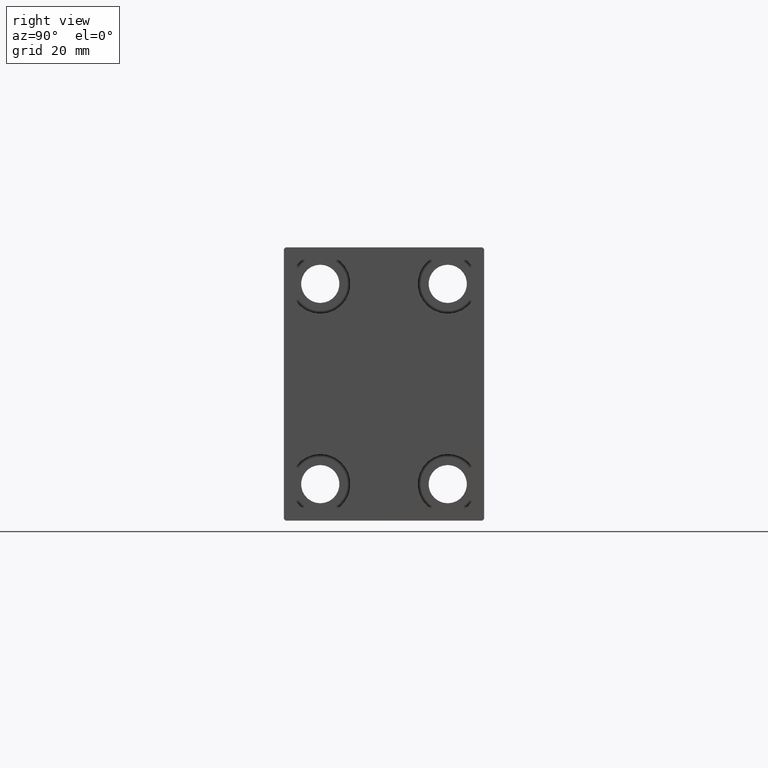
[diagram: clean part render]
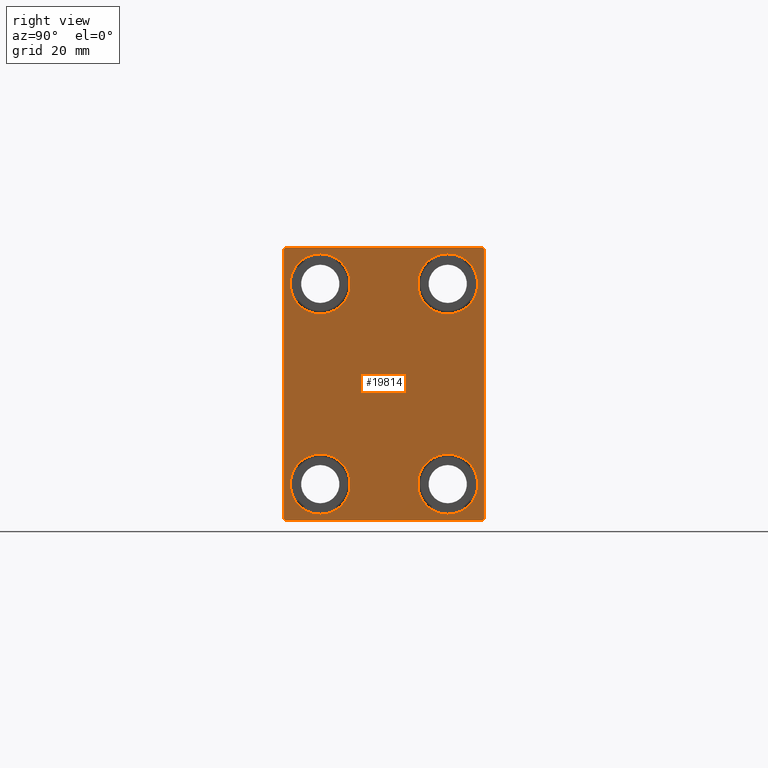
[diagram: same view with one face highlighted and labeled with its STEP entity id]
A machine part, right view. The second image highlights one B-rep face of the part: STEP entity #19814.
In plain terms, the highlighted planar face has unit normal (1, 0, 0).
Its self-contained STEP definition (entity closure, byte-faithful):
#22 = ORIENTED_EDGE ( 'NONE', *, *, #248, .T. ) ;
#248 = EDGE_CURVE ( 'NONE', #11157, #6592, #11171, .T. ) ;
#280 = FACE_BOUND ( 'NONE', #11203, .T. ) ;
#523 = FACE_BOUND ( 'NONE', #22018, .T. ) ;
#537 = EDGE_CURVE ( 'NONE', #32947, #46405, #14655, .T. ) ;
#695 = VECTOR ( 'NONE', #15136, 1000.000000000000000 ) ;
#758 = CARTESIAN_POINT ( 'NONE',  ( 105.0000000000000000, 17.49999999999999645, -27.50000000000000355 ) ) ;
#877 = CIRCLE ( 'NONE', #10692, 8.250000000000000000 ) ;
#1201 = CARTESIAN_POINT ( 'NONE',  ( 105.0000000000000000, -17.50000000000000355, -27.50000000000000355 ) ) ;
#1653 = ORIENTED_EDGE ( 'NONE', *, *, #10357, .T. ) ;
#2621 = AXIS2_PLACEMENT_3D ( 'NONE', #20631, #24173, #20401 ) ;
#2986 = EDGE_CURVE ( 'NONE', #46405, #32947, #13110, .T. ) ;
#3544 = VERTEX_POINT ( 'NONE', #36814 ) ;
#4129 = CARTESIAN_POINT ( 'NONE',  ( 105.0000000000000000, -27.50000000000000355, 37.50000000000000000 ) ) ;
#4955 = AXIS2_PLACEMENT_3D ( 'NONE', #1201, #11401, #25819 ) ;
#5139 = DIRECTION ( 'NONE',  ( 0.000000000000000000, 1.000000000000000000, 0.000000000000000000 ) ) ;
#5162 = ORIENTED_EDGE ( 'NONE', *, *, #42896, .T. ) ;
#5534 = AXIS2_PLACEMENT_3D ( 'NONE', #26331, #44065, #41002 ) ;
#5926 = EDGE_LOOP ( 'NONE', ( #14319, #15147 ) ) ;
#6106 = CARTESIAN_POINT ( 'NONE',  ( 105.0000000000000000, 27.50000000000000355, -37.50000000000000000 ) ) ;
#6252 = EDGE_CURVE ( 'NONE', #14514, #41051, #36610, .T. ) ;
#6592 = VERTEX_POINT ( 'NONE', #25732 ) ;
#7147 = CIRCLE ( 'NONE', #39632, 8.250000000000000000 ) ;
#7225 = CARTESIAN_POINT ( 'NONE',  ( 105.0000000000000000, 17.50000000000000355, 19.25000000000000000 ) ) ;
#7358 = VERTEX_POINT ( 'NONE', #34756 ) ;
#7791 = CARTESIAN_POINT ( 'NONE',  ( 105.0000000000000000, 27.49999999999999645, 37.00000000000001421 ) ) ;
#8145 = DIRECTION ( 'NONE',  ( -1.000000000000000000, -0.000000000000000000, -0.000000000000000000 ) ) ;
#8325 = FACE_BOUND ( 'NONE', #42823, .T. ) ;
#8373 = DIRECTION ( 'NONE',  ( 0.000000000000000000, 0.000000000000000000, 1.000000000000000000 ) ) ;
#8450 = EDGE_CURVE ( 'NONE', #41051, #14514, #44954, .T. ) ;
#8724 = CARTESIAN_POINT ( 'NONE',  ( 105.0000000000000000, -32.25000000000038369, -32.24999999999949551 ) ) ;
#9663 = LINE ( 'NONE', #12762, #19270 ) ;
#9815 = EDGE_CURVE ( 'NONE', #6592, #45237, #36546, .T. ) ;
#9898 = ORIENTED_EDGE ( 'NONE', *, *, #22480, .T. ) ;
#10357 = EDGE_CURVE ( 'NONE', #30038, #42576, #18017, .T. ) ;
#10692 = AXIS2_PLACEMENT_3D ( 'NONE', #46297, #10797, #17220 ) ;
#10797 = DIRECTION ( 'NONE',  ( -1.000000000000000000, -0.000000000000000000, -0.000000000000000000 ) ) ;
#10855 = AXIS2_PLACEMENT_3D ( 'NONE', #21978, #25756, #40194 ) ;
#10947 = CARTESIAN_POINT ( 'NONE',  ( 105.0000000000000000, 0.000000000000000000, 0.000000000000000000 ) ) ;
#11157 = VERTEX_POINT ( 'NONE', #37677 ) ;
#11171 = LINE ( 'NONE', #18957, #23672 ) ;
#11203 = EDGE_LOOP ( 'NONE', ( #32267, #34064 ) ) ;
#11401 = DIRECTION ( 'NONE',  ( -1.000000000000000000, -0.000000000000000000, -0.000000000000000000 ) ) ;
#11658 = VECTOR ( 'NONE', #5139, 1000.000000000000000 ) ;
#11765 = VECTOR ( 'NONE', #40424, 1000.000000000000000 ) ;
#12762 = CARTESIAN_POINT ( 'NONE',  ( 105.0000000000000000, 32.24999999999999289, -32.24999999999999289 ) ) ;
#13083 = CARTESIAN_POINT ( 'NONE',  ( 105.0000000000000000, 17.49999999999999645, -19.25000000000000355 ) ) ;
#13110 = CIRCLE ( 'NONE', #5534, 8.249999999999992895 ) ;
#13441 = DIRECTION ( 'NONE',  ( -1.000000000000000000, -0.000000000000000000, -0.000000000000000000 ) ) ;
#13769 = DIRECTION ( 'NONE',  ( -0.000000000000000000, -0.7071067811865524577, 0.7071067811865426878 ) ) ;
#14122 = DIRECTION ( 'NONE',  ( 0.000000000000000000, 0.000000000000000000, -1.000000000000000000 ) ) ;
#14319 = ORIENTED_EDGE ( 'NONE', *, *, #537, .T. ) ;
#14367 = ORIENTED_EDGE ( 'NONE', *, *, #6252, .T. ) ;
#14514 = VERTEX_POINT ( 'NONE', #23542 ) ;
#14655 = CIRCLE ( 'NONE', #10855, 8.249999999999992895 ) ;
#14700 = CARTESIAN_POINT ( 'NONE',  ( 105.0000000000000000, 32.24999999999981526, 32.25000000000025580 ) ) ;
#14742 = PLANE ( 'NONE',  #19137 ) ;
#14851 = VECTOR ( 'NONE', #13769, 1000.000000000000000 ) ;
#15010 = VERTEX_POINT ( 'NONE', #24430 ) ;
#15136 = DIRECTION ( 'NONE',  ( -0.000000000000000000, 0.7071067811865378028, -0.7071067811865573427 ) ) ;
#15147 = ORIENTED_EDGE ( 'NONE', *, *, #2986, .T. ) ;
#15218 = DIRECTION ( 'NONE',  ( -1.000000000000000000, -0.000000000000000000, -0.000000000000000000 ) ) ;
#16820 = CARTESIAN_POINT ( 'NONE',  ( 105.0000000000000000, -27.50000000000000355, -37.00000000000000000 ) ) ;
#17220 = DIRECTION ( 'NONE',  ( 0.000000000000000000, 0.000000000000000000, 1.000000000000000000 ) ) ;
#18017 = LINE ( 'NONE', #14700, #14851 ) ;
#18579 = CIRCLE ( 'NONE', #4955, 8.250000000000000000 ) ;
#18957 = CARTESIAN_POINT ( 'NONE',  ( 105.0000000000000000, -32.25000000000000000, 32.25000000000000000 ) ) ;
#18976 = DIRECTION ( 'NONE',  ( 1.000000000000000000, 0.000000000000000000, 0.000000000000000000 ) ) ;
#19137 = AXIS2_PLACEMENT_3D ( 'NONE', #10947, #18976, #22284 ) ;
#19270 = VECTOR ( 'NONE', #30950, 1000.000000000000114 ) ;
#19814 = ADVANCED_FACE ( 'NONE', ( #280, #523, #25827, #8325, #28913 ), #14742, .T. ) ;
#20401 = DIRECTION ( 'NONE',  ( 0.000000000000000000, 0.000000000000000000, 1.000000000000000000 ) ) ;
#20403 = ORIENTED_EDGE ( 'NONE', *, *, #40544, .T. ) ;
#20631 = CARTESIAN_POINT ( 'NONE',  ( 105.0000000000000000, -17.49999999999999645, 27.49999999999999645 ) ) ;
#21474 = DIRECTION ( 'NONE',  ( 0.000000000000000000, -9.251858538542970348E-17, 1.000000000000000000 ) ) ;
#21978 = CARTESIAN_POINT ( 'NONE',  ( 105.0000000000000000, 17.50000000000000355, 27.49999999999999645 ) ) ;
#22018 = EDGE_LOOP ( 'NONE', ( #42210, #14367 ) ) ;
#22284 = DIRECTION ( 'NONE',  ( 0.000000000000000000, 0.000000000000000000, -1.000000000000000000 ) ) ;
#22474 = EDGE_LOOP ( 'NONE', ( #26542, #22, #40435, #20403, #9898, #43851, #42386, #1653 ) ) ;
#22480 = EDGE_CURVE ( 'NONE', #29774, #45917, #41098, .T. ) ;
#22956 = DIRECTION ( 'NONE',  ( 0.000000000000000000, 0.000000000000000000, 1.000000000000000000 ) ) ;
#23106 = CARTESIAN_POINT ( 'NONE',  ( 105.0000000000000000, -27.50000000000000355, -37.50000000000000000 ) ) ;
#23542 = CARTESIAN_POINT ( 'NONE',  ( 105.0000000000000000, -17.49999999999999645, 35.74999999999999289 ) ) ;
#23672 = VECTOR ( 'NONE', #26039, 1000.000000000000114 ) ;
#23710 = EDGE_CURVE ( 'NONE', #27299, #7358, #7147, .T. ) ;
#23797 = AXIS2_PLACEMENT_3D ( 'NONE', #41183, #13441, #22956 ) ;
#24173 = DIRECTION ( 'NONE',  ( -1.000000000000000000, -0.000000000000000000, -0.000000000000000000 ) ) ;
#24430 = CARTESIAN_POINT ( 'NONE',  ( 105.0000000000000000, -17.50000000000000355, -35.75000000000000711 ) ) ;
#25732 = CARTESIAN_POINT ( 'NONE',  ( 105.0000000000000000, -27.50000000000000355, 37.00000000000000000 ) ) ;
#25756 = DIRECTION ( 'NONE',  ( -1.000000000000000000, -0.000000000000000000, -0.000000000000000000 ) ) ;
#25819 = DIRECTION ( 'NONE',  ( 0.000000000000000000, 0.000000000000000000, 1.000000000000000000 ) ) ;
#25827 = FACE_BOUND ( 'NONE', #5926, .T. ) ;
#25981 = CARTESIAN_POINT ( 'NONE',  ( 105.0000000000000000, 27.49999999999999645, 37.50000000000000711 ) ) ;
#26039 = DIRECTION ( 'NONE',  ( 0.000000000000000000, -0.7071067811865474617, -0.7071067811865474617 ) ) ;
#26329 = EDGE_CURVE ( 'NONE', #42576, #11157, #39967, .T. ) ;
#26331 = CARTESIAN_POINT ( 'NONE',  ( 105.0000000000000000, 17.50000000000000355, 27.49999999999999645 ) ) ;
#26542 = ORIENTED_EDGE ( 'NONE', *, *, #26329, .T. ) ;
#27223 = CARTESIAN_POINT ( 'NONE',  ( 105.0000000000000000, -27.00000000000001776, -37.50000000000000000 ) ) ;
#27299 = VERTEX_POINT ( 'NONE', #13083 ) ;
#28043 = EDGE_CURVE ( 'NONE', #7358, #27299, #29083, .T. ) ;
#28721 = EDGE_CURVE ( 'NONE', #45917, #3544, #9663, .T. ) ;
#28753 = EDGE_CURVE ( 'NONE', #3544, #30038, #38519, .T. ) ;
#28913 = FACE_OUTER_BOUND ( 'NONE', #22474, .T. ) ;
#29083 = CIRCLE ( 'NONE', #44956, 8.250000000000000000 ) ;
#29713 = VERTEX_POINT ( 'NONE', #45210 ) ;
#29774 = VERTEX_POINT ( 'NONE', #27223 ) ;
#30038 = VERTEX_POINT ( 'NONE', #7791 ) ;
#30950 = DIRECTION ( 'NONE',  ( -0.000000000000000000, 0.7071067811865474617, 0.7071067811865474617 ) ) ;
#32153 = VECTOR ( 'NONE', #14122, 1000.000000000000000 ) ;
#32267 = ORIENTED_EDGE ( 'NONE', *, *, #28043, .T. ) ;
#32947 = VERTEX_POINT ( 'NONE', #7225 ) ;
#33434 = CARTESIAN_POINT ( 'NONE',  ( 105.0000000000000000, 17.49999999999999645, -27.50000000000000355 ) ) ;
#33566 = ORIENTED_EDGE ( 'NONE', *, *, #45027, .T. ) ;
#34064 = ORIENTED_EDGE ( 'NONE', *, *, #23710, .T. ) ;
#34756 = CARTESIAN_POINT ( 'NONE',  ( 105.0000000000000000, 17.49999999999999645, -35.75000000000000711 ) ) ;
#35386 = CARTESIAN_POINT ( 'NONE',  ( 105.0000000000000000, 26.99999999999998934, -37.50000000000000000 ) ) ;
#36546 = LINE ( 'NONE', #4129, #32153 ) ;
#36610 = CIRCLE ( 'NONE', #2621, 8.249999999999992895 ) ;
#36814 = CARTESIAN_POINT ( 'NONE',  ( 105.0000000000000000, 27.50000000000000355, -36.99999999999998579 ) ) ;
#37677 = CARTESIAN_POINT ( 'NONE',  ( 105.0000000000000000, -27.00000000000000355, 37.50000000000000000 ) ) ;
#38519 = LINE ( 'NONE', #6106, #45695 ) ;
#39632 = AXIS2_PLACEMENT_3D ( 'NONE', #758, #15218, #42903 ) ;
#39722 = CARTESIAN_POINT ( 'NONE',  ( 105.0000000000000000, 26.99999999999999645, 37.50000000000000711 ) ) ;
#39967 = LINE ( 'NONE', #25981, #11765 ) ;
#40194 = DIRECTION ( 'NONE',  ( 0.000000000000000000, 0.000000000000000000, 1.000000000000000000 ) ) ;
#40424 = DIRECTION ( 'NONE',  ( 0.000000000000000000, -1.000000000000000000, -1.261617073437677999E-16 ) ) ;
#40435 = ORIENTED_EDGE ( 'NONE', *, *, #9815, .T. ) ;
#40544 = EDGE_CURVE ( 'NONE', #45237, #29774, #44445, .T. ) ;
#41002 = DIRECTION ( 'NONE',  ( 0.000000000000000000, 0.000000000000000000, 1.000000000000000000 ) ) ;
#41051 = VERTEX_POINT ( 'NONE', #44799 ) ;
#41098 = LINE ( 'NONE', #23106, #11658 ) ;
#41183 = CARTESIAN_POINT ( 'NONE',  ( 105.0000000000000000, -17.49999999999999645, 27.49999999999999645 ) ) ;
#42210 = ORIENTED_EDGE ( 'NONE', *, *, #8450, .T. ) ;
#42386 = ORIENTED_EDGE ( 'NONE', *, *, #28753, .T. ) ;
#42576 = VERTEX_POINT ( 'NONE', #39722 ) ;
#42823 = EDGE_LOOP ( 'NONE', ( #5162, #33566 ) ) ;
#42896 = EDGE_CURVE ( 'NONE', #15010, #29713, #877, .T. ) ;
#42903 = DIRECTION ( 'NONE',  ( 0.000000000000000000, 0.000000000000000000, 1.000000000000000000 ) ) ;
#43851 = ORIENTED_EDGE ( 'NONE', *, *, #28721, .T. ) ;
#44065 = DIRECTION ( 'NONE',  ( -1.000000000000000000, -0.000000000000000000, -0.000000000000000000 ) ) ;
#44445 = LINE ( 'NONE', #8724, #695 ) ;
#44516 = CARTESIAN_POINT ( 'NONE',  ( 105.0000000000000000, 17.50000000000000355, 35.74999999999999289 ) ) ;
#44799 = CARTESIAN_POINT ( 'NONE',  ( 105.0000000000000000, -17.49999999999999645, 19.25000000000000000 ) ) ;
#44954 = CIRCLE ( 'NONE', #23797, 8.249999999999992895 ) ;
#44956 = AXIS2_PLACEMENT_3D ( 'NONE', #33434, #8145, #8373 ) ;
#45027 = EDGE_CURVE ( 'NONE', #29713, #15010, #18579, .T. ) ;
#45210 = CARTESIAN_POINT ( 'NONE',  ( 105.0000000000000000, -17.50000000000000355, -19.25000000000000355 ) ) ;
#45237 = VERTEX_POINT ( 'NONE', #16820 ) ;
#45695 = VECTOR ( 'NONE', #21474, 1000.000000000000000 ) ;
#45917 = VERTEX_POINT ( 'NONE', #35386 ) ;
#46297 = CARTESIAN_POINT ( 'NONE',  ( 105.0000000000000000, -17.50000000000000355, -27.50000000000000355 ) ) ;
#46405 = VERTEX_POINT ( 'NONE', #44516 ) ;